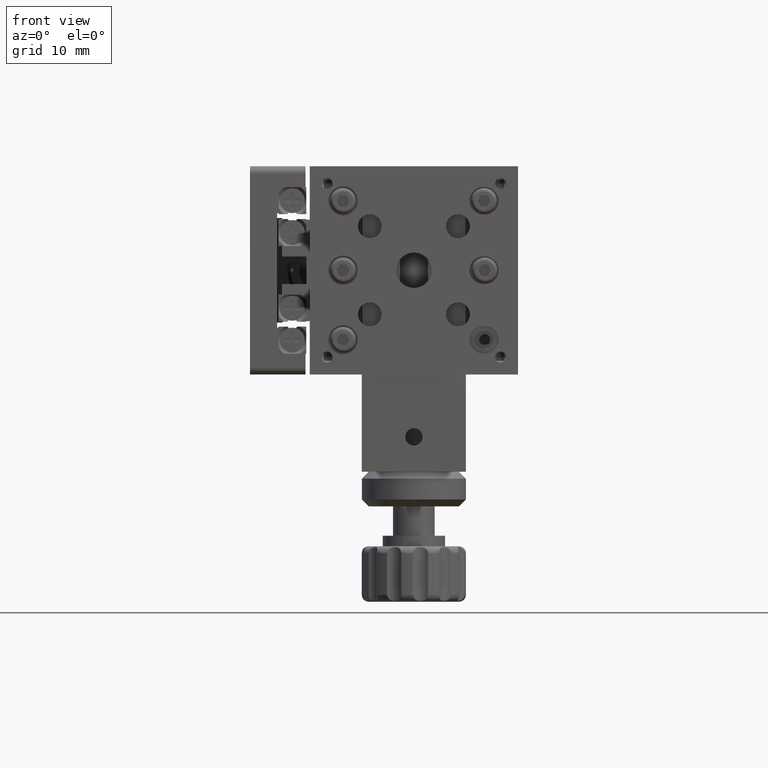
[diagram: clean part render]
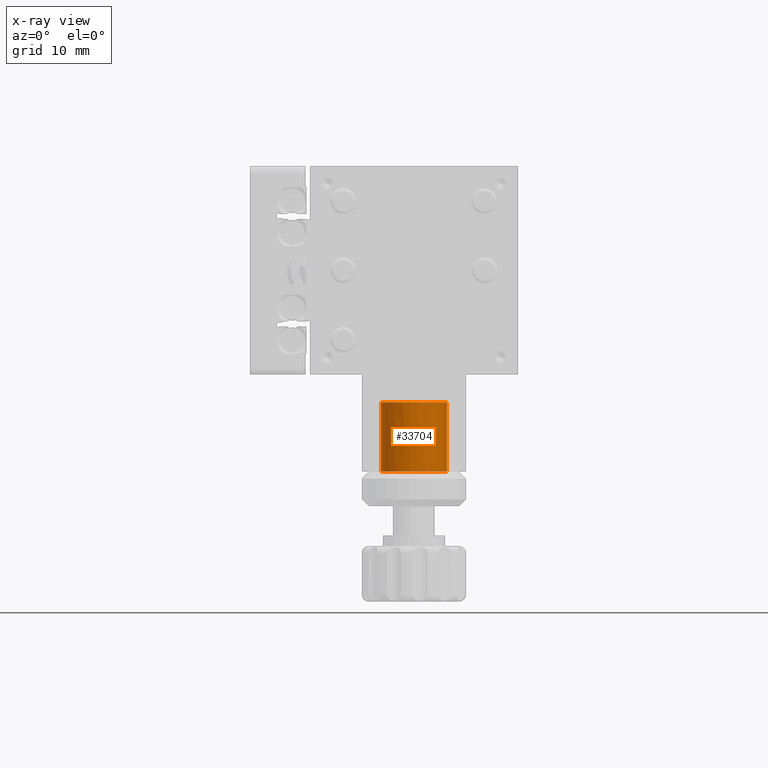
[diagram: x-ray — body ghosted, one internal face saturated and labeled with its STEP entity id]
A machine part, front view, then the same camera in x-ray: the body is ghosted and one INTERNAL B-rep face — a face not visible from any outside direction — is saturated and labeled: STEP entity #33704.
In plain terms, the highlighted cylindrical surface (edge-blend (fillet) strip) has radius 4.75 mm, axis along (-0, 0, -1).
Its self-contained STEP definition (entity closure, byte-faithful):
#197 = CARTESIAN_POINT ( 'NONE',  ( 20.21743857283675900, 0.9082029349681536300, -23.67212284424995200 ) ) ;
#255 = CARTESIAN_POINT ( 'NONE',  ( 23.75000000000001800, 5.499999999999988500, -29.00000000000000400 ) ) ;
#771 = CARTESIAN_POINT ( 'NONE',  ( 20.24196737498160200, 0.9152109674942930900, -24.16347934992616000 ) ) ;
#1134 = CARTESIAN_POINT ( 'NONE',  ( 23.75000000000001800, 5.499999999999988500, -15.00000000000000700 ) ) ;
#1375 = CARTESIAN_POINT ( 'NONE',  ( 17.79028895280660900, 0.9065943827386299100, -23.67472083788354500 ) ) ;
#1554 = CARTESIAN_POINT ( 'NONE',  ( 18.67156655973249400, 0.7589429313483933000, -22.78290907528236200 ) ) ;
#1733 = CARTESIAN_POINT ( 'NONE',  ( 17.90855653439109900, 0.8766384414464282200, -23.36891685558520800 ) ) ;
#2018 = EDGE_CURVE ( 'NONE', #39713, #28737, #54932, .T. ) ;
#2120 = CARTESIAN_POINT ( 'NONE',  ( 17.81402552789232300, 0.9003239476630482400, -23.59661650386372900 ) ) ;
#2928 = DIRECTION ( 'NONE',  ( -1.232595164407830900E-031, 7.511126783110220900E-032, -1.000000000000000000 ) ) ;
#3104 = VERTEX_POINT ( 'NONE', #255 ) ;
#3330 = CARTESIAN_POINT ( 'NONE',  ( 14.25000000000001600, 5.499999999999987600, -19.00000000000000400 ) ) ;
#3480 = AXIS2_PLACEMENT_3D ( 'NONE', #55322, #2928, #7342 ) ;
#3590 = VERTEX_POINT ( 'NONE', #26717 ) ;
#3988 = CARTESIAN_POINT ( 'NONE',  ( 14.25000000000001600, 5.499999999999987600, -29.00000000000000400 ) ) ;
#4622 = CARTESIAN_POINT ( 'NONE',  ( 20.18575092821248200, 0.9002679696753652600, -24.40391993857302900 ) ) ;
#4627 = ORIENTED_EDGE ( 'NONE', *, *, #55450, .F. ) ;
#4996 = CARTESIAN_POINT ( 'NONE',  ( 19.62987356437511400, 0.7895151087691620900, -22.90805539968401300 ) ) ;
#5769 = CARTESIAN_POINT ( 'NONE',  ( 17.75818885501429600, 0.9151683714034454200, -23.83534147092174700 ) ) ;
#6341 = CARTESIAN_POINT ( 'NONE',  ( 18.37204815311614700, 0.7911953748270621500, -22.91612371076001500 ) ) ;
#7342 = DIRECTION ( 'NONE',  ( -1.000000000000000000, 0.0000000000000000000, 0.0000000000000000000 ) ) ;
#9020 = CARTESIAN_POINT ( 'NONE',  ( 19.76975334251044800, 0.8113343438336745300, -24.99813650138923600 ) ) ;
#9204 = CARTESIAN_POINT ( 'NONE',  ( 19.16355763269239500, 0.7499999999999879000, -22.75000000000001800 ) ) ;
#9587 = CARTESIAN_POINT ( 'NONE',  ( 20.09085832533181600, 0.8764964497558613800, -23.36779099820723000 ) ) ;
#10722 = CARTESIAN_POINT ( 'NONE',  ( 17.78325580003664500, 0.9080312158806522800, -24.32941104941382400 ) ) ;
#11316 = CARTESIAN_POINT ( 'NONE',  ( 19.00000000000001800, 5.499999999999987600, -29.00000000000000400 ) ) ;
#12051 = EDGE_LOOP ( 'NONE', ( #25698, #18011, #27169, #19671 ) ) ;
#12347 = EDGE_CURVE ( 'NONE', #28737, #29412, #43232, .T. ) ;
#13014 = CARTESIAN_POINT ( 'NONE',  ( 19.76827607573723700, 0.8110743506019539900, -23.00058798034519100 ) ) ;
#13100 = FACE_OUTER_BOUND ( 'NONE', #12051, .T. ) ;
#13189 = CARTESIAN_POINT ( 'NONE',  ( 19.33015394513657600, 0.7590735239117116800, -25.21658532254483700 ) ) ;
#13549 = CIRCLE ( 'NONE', #41244, 4.750000000000000900 ) ;
#13579 = CARTESIAN_POINT ( 'NONE',  ( 20.09190416404366900, 0.8767538076857446200, -24.62997747473897500 ) ) ;
#14735 = CARTESIAN_POINT ( 'NONE',  ( 18.23055976530377000, 0.8112798815675003100, -24.99840023883562200 ) ) ;
#15345 = EDGE_CURVE ( 'NONE', #39713, #3104, #33395, .T. ) ;
#16508 = EDGE_CURVE ( 'NONE', #3590, #44367, #49146, .T. ) ;
#17802 = CARTESIAN_POINT ( 'NONE',  ( 19.00000000000001100, 0.7499999999999875700, -22.75000000000001400 ) ) ;
#18011 = ORIENTED_EDGE ( 'NONE', *, *, #15345, .T. ) ;
#18129 = B_SPLINE_CURVE_WITH_KNOTS ( 'NONE', 3,
 ( #45371, #27604, #23978, #40982, #14735, #19346, #53964, #10722, #27803, #50159, #5769, #1375, #2120, #1733, #31972, #19722, #19158, #6341, #28361, #1554, #36953, #37131 ),
 .UNSPECIFIED., .F., .F.,
 ( 4, 2, 2, 2, 2, 2, 2, 2, 2, 2, 4 ),
 ( 0.0000000000000000000, 0.0004906780799882360100, 0.0009813561599764720300, 0.001472034239964708100, 0.001962712319952944100, 0.002208051359947062100, 0.002453390399941180200, 0.002944068479929420200, 0.003189407519923536100, 0.003434746559917652400, 0.003925424639905881200 ),
 .UNSPECIFIED. ) ;
#18169 = CARTESIAN_POINT ( 'NONE',  ( 20.24995784495809300, 0.9174128063141603300, -23.83482086620740900 ) ) ;
#19158 = CARTESIAN_POINT ( 'NONE',  ( 18.23692579254459300, 0.8111960721340473200, -23.00660728495836700 ) ) ;
#19346 = CARTESIAN_POINT ( 'NONE',  ( 18.00110643297188400, 0.8547501396035849200, -24.76879968354979100 ) ) ;
#19671 = ORIENTED_EDGE ( 'NONE', *, *, #12347, .F. ) ;
#19722 = CARTESIAN_POINT ( 'NONE',  ( 18.17419860010137000, 0.8219640798390694900, -23.05806331924227200 ) ) ;
#22415 = CARTESIAN_POINT ( 'NONE',  ( 19.16592335071970900, 0.7499999999999873400, -25.24999999999999600 ) ) ;
#23978 = CARTESIAN_POINT ( 'NONE',  ( 18.67122448208380400, 0.7589544841916240300, -25.21705886959363200 ) ) ;
#24186 = DIRECTION ( 'NONE',  ( -1.232595164407830900E-031, 7.511126783110220900E-032, -1.000000000000000000 ) ) ;
#25698 = ORIENTED_EDGE ( 'NONE', *, *, #2018, .F. ) ;
#26717 = CARTESIAN_POINT ( 'NONE',  ( 19.00000000000001100, 0.7499999999999875700, -22.75000000000001400 ) ) ;
#27006 = CARTESIAN_POINT ( 'NONE',  ( 19.32870666967220400, 0.7589705186609933000, -22.78302192190210800 ) ) ;
#27169 = ORIENTED_EDGE ( 'NONE', *, *, #31261, .F. ) ;
#27604 = CARTESIAN_POINT ( 'NONE',  ( 18.83403166234747800, 0.7499999999999881200, -25.25000000000000700 ) ) ;
#27803 = CARTESIAN_POINT ( 'NONE',  ( 17.75007029363584000, 0.9174051308849015000, -24.16441004656890400 ) ) ;
#28125 = CARTESIAN_POINT ( 'NONE',  ( 19.00000000000001100, 0.7499999999999876800, -25.25000000000000000 ) ) ;
#28361 = CARTESIAN_POINT ( 'NONE',  ( 18.44528730432046300, 0.7818921707451048600, -22.87685106233371400 ) ) ;
#28653 = VECTOR ( 'NONE', #40756, 1000.000000000000000 ) ;
#28737 = VERTEX_POINT ( 'NONE', #3330 ) ;
#29412 = VERTEX_POINT ( 'NONE', #3988 ) ;
#30868 = CARTESIAN_POINT ( 'NONE',  ( 20.21001630678228300, 0.9066750637012115400, -24.32414348010092200 ) ) ;
#31261 = EDGE_CURVE ( 'NONE', #29412, #3104, #13549, .T. ) ;
#31972 = CARTESIAN_POINT ( 'NONE',  ( 18.00061292959405200, 0.8548307271890467400, -23.23156253733222700 ) ) ;
#32756 = DIRECTION ( 'NONE',  ( -1.000000000000000000, 0.0000000000000000000, 0.0000000000000000000 ) ) ;
#32874 = ORIENTED_EDGE ( 'NONE', *, *, #16508, .F. ) ;
#33395 = LINE ( 'NONE', #1134, #28653 ) ;
#33704 = ADVANCED_FACE ( 'NONE', ( #55491, #13100 ), #38460, .F. ) ;
#35213 = CARTESIAN_POINT ( 'NONE',  ( 19.63115986484614000, 0.7896897443829059600, -25.09120057712969400 ) ) ;
#36953 = CARTESIAN_POINT ( 'NONE',  ( 18.83639802179383300, 0.7499999999999882300, -22.75000000000001400 ) ) ;
#37131 = CARTESIAN_POINT ( 'NONE',  ( 19.00000000000001100, 0.7499999999999875700, -22.75000000000001400 ) ) ;
#37182 = CARTESIAN_POINT ( 'NONE',  ( 14.25000000000001600, 5.499999999999987600, -15.00000000000000700 ) ) ;
#38357 = EDGE_LOOP ( 'NONE', ( #4627, #32874 ) ) ;
#38436 = VECTOR ( 'NONE', #41220, 1000.000000000000000 ) ;
#38460 = CYLINDRICAL_SURFACE ( 'NONE', #45005, 4.750000000000000900 ) ;
#38836 = CARTESIAN_POINT ( 'NONE',  ( 23.75000000000001800, 5.499999999999988500, -19.00000000000000400 ) ) ;
#39636 = CARTESIAN_POINT ( 'NONE',  ( 19.00000000000001100, 0.7499999999999876800, -25.25000000000000000 ) ) ;
#39713 = VERTEX_POINT ( 'NONE', #38836 ) ;
#40001 = CARTESIAN_POINT ( 'NONE',  ( 20.25002101634230200, 0.9174300377212892800, -24.08211058887710000 ) ) ;
#40756 = DIRECTION ( 'NONE',  ( -1.232595164407830900E-031, 7.511126783110220900E-032, -1.000000000000000000 ) ) ;
#40982 = CARTESIAN_POINT ( 'NONE',  ( 18.36876806383656600, 0.7896760019171587000, -25.09127076200407200 ) ) ;
#41220 = DIRECTION ( 'NONE',  ( -1.232595164407830900E-031, 7.511126783110220900E-032, -1.000000000000000000 ) ) ;
#41244 = AXIS2_PLACEMENT_3D ( 'NONE', #11316, #45577, #46133 ) ;
#43232 = LINE ( 'NONE', #37182, #38436 ) ;
#44032 = CARTESIAN_POINT ( 'NONE',  ( 19.99896260231596300, 0.8547680829915789100, -24.76868094999529300 ) ) ;
#44367 = VERTEX_POINT ( 'NONE', #28125 ) ;
#45005 = AXIS2_PLACEMENT_3D ( 'NONE', #49822, #24186, #32756 ) ;
#45371 = CARTESIAN_POINT ( 'NONE',  ( 19.00000000000001100, 0.7499999999999876800, -25.25000000000000000 ) ) ;
#45577 = DIRECTION ( 'NONE',  ( 1.232595164407830900E-031, -7.511126783110220900E-032, 1.000000000000000000 ) ) ;
#46133 = DIRECTION ( 'NONE',  ( 1.000000000000000000, 0.0000000000000000000, 0.0000000000000000000 ) ) ;
#49146 = B_SPLINE_CURVE_WITH_KNOTS ( 'NONE', 3,
 ( #17802, #9204, #27006, #4996, #13014, #52638, #9587, #197, #18169, #40001, #771, #30868, #4622, #13579, #44032, #9020, #35213, #13189, #22415, #39636 ),
 .UNSPECIFIED., .F., .F.,
 ( 4, 2, 2, 2, 2, 2, 2, 2, 2, 4 ),
 ( 0.003925424639905881200, 0.004415969718008673000, 0.004906514796111463900, 0.005397059874214255700, 0.005887604952317047500, 0.006132877491368442600, 0.006378150030419839400, 0.006868695108522626000, 0.007359240186625413400, 0.007849785264728200900 ),
 .UNSPECIFIED. ) ;
#49822 = CARTESIAN_POINT ( 'NONE',  ( 19.00000000000001800, 5.499999999999987600, -15.00000000000000700 ) ) ;
#50159 = CARTESIAN_POINT ( 'NONE',  ( 17.74996502511609400, 0.9174338452249337600, -23.91859794146931200 ) ) ;
#52638 = CARTESIAN_POINT ( 'NONE',  ( 19.99888686905695300, 0.8547339261395688900, -23.23104126482214900 ) ) ;
#53964 = CARTESIAN_POINT ( 'NONE',  ( 17.90814063475903600, 0.8767449898359903600, -24.62993746844906400 ) ) ;
#54932 = CIRCLE ( 'NONE', #3480, 4.750000000000000900 ) ;
#55322 = CARTESIAN_POINT ( 'NONE',  ( 19.00000000000001800, 5.499999999999987600, -19.00000000000000400 ) ) ;
#55450 = EDGE_CURVE ( 'NONE', #44367, #3590, #18129, .T. ) ;
#55491 = FACE_BOUND ( 'NONE', #38357, .T. ) ;